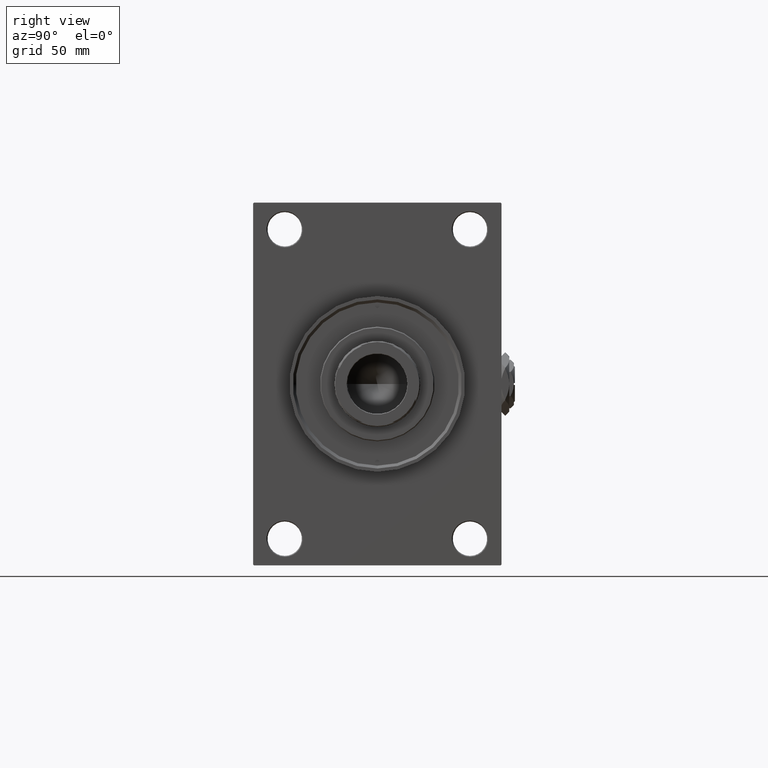
[diagram: clean part render]
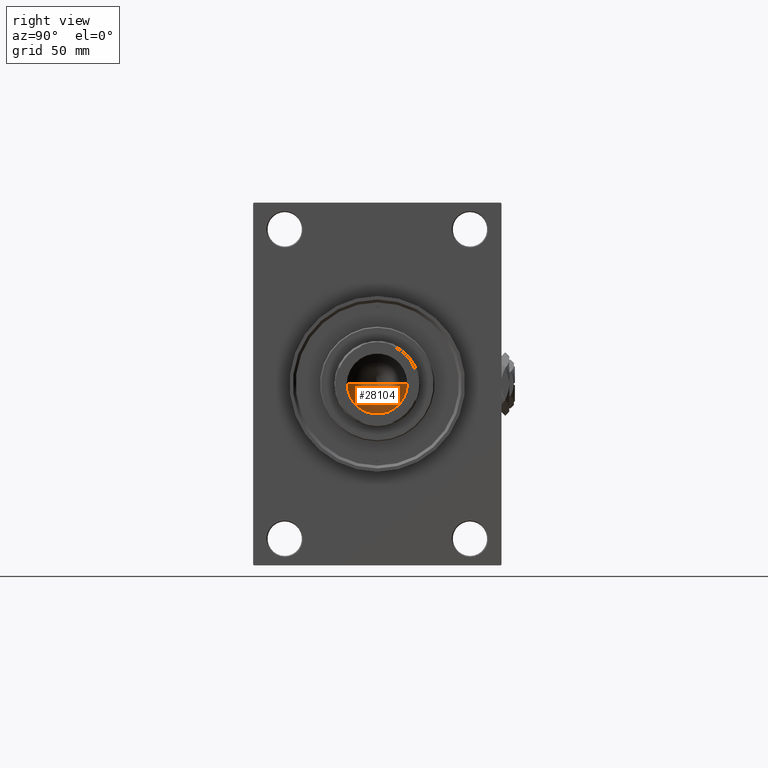
[diagram: same view with one face highlighted and labeled with its STEP entity id]
A machine part, right view. The second image highlights one B-rep face of the part: STEP entity #28104.
In plain terms, the highlighted conical surface has half-angle 59 deg.
Its self-contained STEP definition (entity closure, byte-faithful):
#613 = ORIENTED_EDGE ( 'NONE', *, *, #4921, .T. ) ;
#997 = AXIS2_PLACEMENT_3D ( 'NONE', #4223, #35076, #26739 ) ;
#2576 = VECTOR ( 'NONE', #20950, 1000.000000000000000 ) ;
#4223 = CARTESIAN_POINT ( 'NONE',  ( 0.000000000000000000, 0.000000000000000000, 183.0000000000000000 ) ) ;
#4535 = EDGE_CURVE ( 'NONE', #39560, #7925, #23408, .T. ) ;
#4921 = EDGE_CURVE ( 'NONE', #12660, #39560, #44626, .T. ) ;
#4975 = CARTESIAN_POINT ( 'NONE',  ( 0.000000000000000000, 0.000000000000000000, 183.0000000000000000 ) ) ;
#7273 = FACE_OUTER_BOUND ( 'NONE', #45732, .T. ) ;
#7824 = EDGE_CURVE ( 'NONE', #12660, #7925, #40198, .T. ) ;
#7925 = VERTEX_POINT ( 'NONE', #20349 ) ;
#12660 = VERTEX_POINT ( 'NONE', #31590 ) ;
#14373 = ORIENTED_EDGE ( 'NONE', *, *, #4535, .T. ) ;
#15097 = CARTESIAN_POINT ( 'NONE',  ( 15.74999999999998934, 0.000000000000000000, 183.0000000000000000 ) ) ;
#16985 = ORIENTED_EDGE ( 'NONE', *, *, #7824, .F. ) ;
#17785 = AXIS2_PLACEMENT_3D ( 'NONE', #4975, #32052, #24193 ) ;
#20349 = CARTESIAN_POINT ( 'NONE',  ( -15.74999999999998934, 1.928818708657080161E-15, 183.0000000000000000 ) ) ;
#20950 = DIRECTION ( 'NONE',  ( -0.8571673007021112234, 1.049727191138617340E-16, 0.5150380749100560429 ) ) ;
#23408 = CIRCLE ( 'NONE', #17785, 15.74999999999998934 ) ;
#24193 = DIRECTION ( 'NONE',  ( 1.000000000000000000, 0.000000000000000000, 0.000000000000000000 ) ) ;
#25894 = DIRECTION ( 'NONE',  ( 0.8571673007021112234, 0.000000000000000000, 0.5150380749100560429 ) ) ;
#26739 = DIRECTION ( 'NONE',  ( 1.000000000000000000, 0.000000000000000000, 0.000000000000000000 ) ) ;
#28104 = ADVANCED_FACE ( 'NONE', ( #7273 ), #43767, .F. ) ;
#29681 = CARTESIAN_POINT ( 'NONE',  ( 15.74999999999998934, 0.000000000000000000, 183.0000000000000000 ) ) ;
#29926 = VECTOR ( 'NONE', #25894, 1000.000000000000000 ) ;
#31590 = CARTESIAN_POINT ( 'NONE',  ( -1.584115414415908206E-14, 0.000000000000000000, 173.5364452503158930 ) ) ;
#32052 = DIRECTION ( 'NONE',  ( -0.000000000000000000, -0.000000000000000000, 1.000000000000000000 ) ) ;
#35076 = DIRECTION ( 'NONE',  ( -0.000000000000000000, -0.000000000000000000, 1.000000000000000000 ) ) ;
#39560 = VERTEX_POINT ( 'NONE', #15097 ) ;
#40198 = LINE ( 'NONE', #48051, #2576 ) ;
#43767 = CONICAL_SURFACE ( 'NONE', #997, 15.74999999999998934, 1.029744258676652313 ) ;
#44626 = LINE ( 'NONE', #29681, #29926 ) ;
#45732 = EDGE_LOOP ( 'NONE', ( #16985, #613, #14373 ) ) ;
#48051 = CARTESIAN_POINT ( 'NONE',  ( -15.74999999999998934, 1.928818708657080161E-15, 183.0000000000000000 ) ) ;